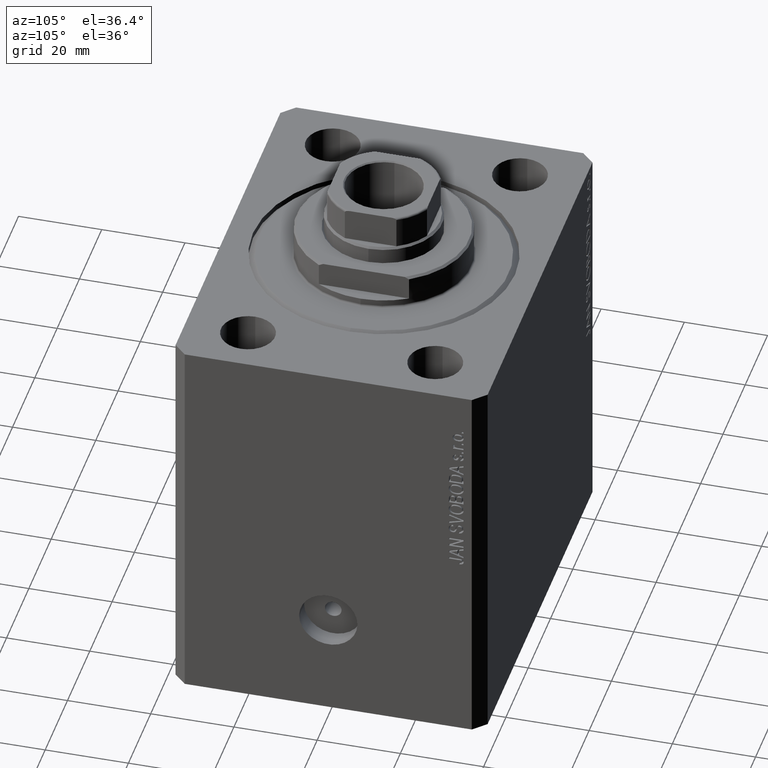
[diagram: clean part render]
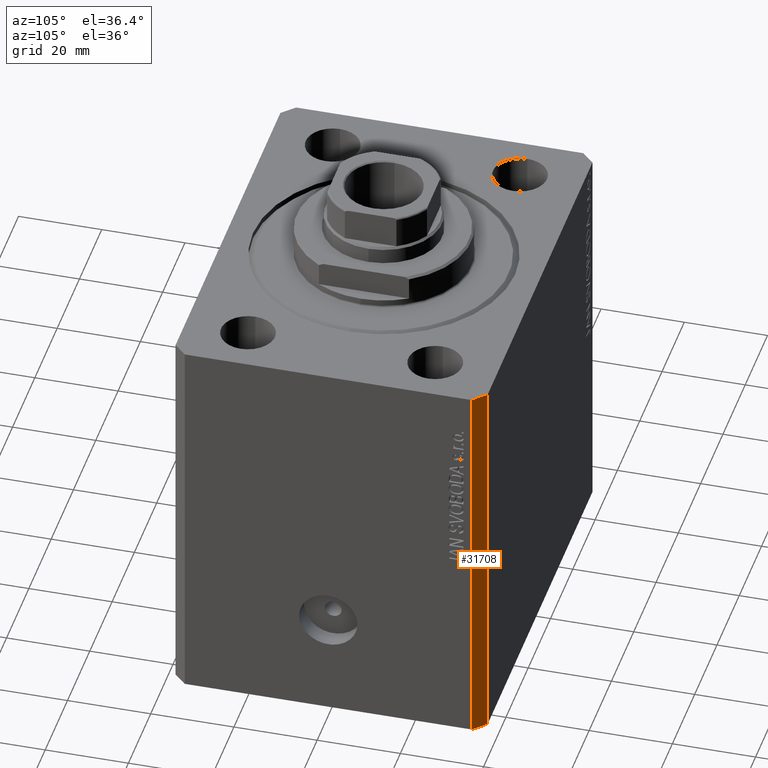
[diagram: same view with one face highlighted and labeled with its STEP entity id]
A machine part, auxiliary view. The second image highlights one B-rep face of the part: STEP entity #31708.
In plain terms, the highlighted planar face has unit normal (0.7071, 0.7071, 0).
Its self-contained STEP definition (entity closure, byte-faithful):
#3985 = DIRECTION ( 'NONE',  ( 0.7071067811865590080, 0.7071067811865361374, -0.000000000000000000 ) ) ;
#4003 = VECTOR ( 'NONE', #36235, 1000.000000000000000 ) ;
#5330 = EDGE_LOOP ( 'NONE', ( #26210, #16885, #29381, #25825 ) ) ;
#7145 = PLANE ( 'NONE',  #42359 ) ;
#10735 = FACE_OUTER_BOUND ( 'NONE', #5330, .T. ) ;
#10902 = VECTOR ( 'NONE', #40845, 1000.000000000000114 ) ;
#11458 = VERTEX_POINT ( 'NONE', #29671 ) ;
#11474 = VECTOR ( 'NONE', #19584, 1000.000000000000000 ) ;
#11986 = VERTEX_POINT ( 'NONE', #36433 ) ;
#13373 = CARTESIAN_POINT ( 'NONE',  ( 50.00000000000051870, 34.49999999999995026, -95.00000000000000000 ) ) ;
#13675 = DIRECTION ( 'NONE',  ( -0.7071067811865360264, 0.7071067811865588970, 0.000000000000000000 ) ) ;
#16668 = LINE ( 'NONE', #16887, #11474 ) ;
#16885 = ORIENTED_EDGE ( 'NONE', *, *, #35060, .F. ) ;
#16887 = CARTESIAN_POINT ( 'NONE',  ( 50.00000000000051870, 34.49999999999995026, -95.00000000000000000 ) ) ;
#17365 = VERTEX_POINT ( 'NONE', #18591 ) ;
#17933 = EDGE_CURVE ( 'NONE', #11986, #11458, #22745, .T. ) ;
#18053 = VECTOR ( 'NONE', #41321, 1000.000000000000114 ) ;
#18591 = CARTESIAN_POINT ( 'NONE',  ( 50.00000000000051870, 34.49999999999995026, 0.000000000000000000 ) ) ;
#19368 = VERTEX_POINT ( 'NONE', #41917 ) ;
#19584 = DIRECTION ( 'NONE',  ( 0.000000000000000000, 0.000000000000000000, 1.000000000000000000 ) ) ;
#20383 = CARTESIAN_POINT ( 'NONE',  ( 50.00000000000051870, 34.49999999999995026, 0.000000000000000000 ) ) ;
#22745 = LINE ( 'NONE', #40267, #4003 ) ;
#23986 = LINE ( 'NONE', #13373, #10902 ) ;
#25825 = ORIENTED_EDGE ( 'NONE', *, *, #17933, .T. ) ;
#26210 = ORIENTED_EDGE ( 'NONE', *, *, #36612, .F. ) ;
#27404 = LINE ( 'NONE', #20383, #18053 ) ;
#29381 = ORIENTED_EDGE ( 'NONE', *, *, #39465, .T. ) ;
#29671 = CARTESIAN_POINT ( 'NONE',  ( 47.00000000000056843, 37.49999999999999289, 0.000000000000000000 ) ) ;
#31708 = ADVANCED_FACE ( 'NONE', ( #10735 ), #7145, .T. ) ;
#35060 = EDGE_CURVE ( 'NONE', #19368, #17365, #16668, .T. ) ;
#36235 = DIRECTION ( 'NONE',  ( 0.000000000000000000, 0.000000000000000000, 1.000000000000000000 ) ) ;
#36433 = CARTESIAN_POINT ( 'NONE',  ( 47.00000000000056843, 37.49999999999999289, -95.00000000000000000 ) ) ;
#36612 = EDGE_CURVE ( 'NONE', #17365, #11458, #27404, .T. ) ;
#37776 = CARTESIAN_POINT ( 'NONE',  ( 50.00000000000051870, 34.49999999999995026, -95.00000000000000000 ) ) ;
#39465 = EDGE_CURVE ( 'NONE', #19368, #11986, #23986, .T. ) ;
#40267 = CARTESIAN_POINT ( 'NONE',  ( 47.00000000000056843, 37.49999999999999289, -95.00000000000000000 ) ) ;
#40845 = DIRECTION ( 'NONE',  ( -0.7071067811865361374, 0.7071067811865588970, 0.000000000000000000 ) ) ;
#41321 = DIRECTION ( 'NONE',  ( -0.7071067811865361374, 0.7071067811865588970, 0.000000000000000000 ) ) ;
#41917 = CARTESIAN_POINT ( 'NONE',  ( 50.00000000000051870, 34.49999999999995026, -95.00000000000000000 ) ) ;
#42359 = AXIS2_PLACEMENT_3D ( 'NONE', #37776, #3985, #13675 ) ;